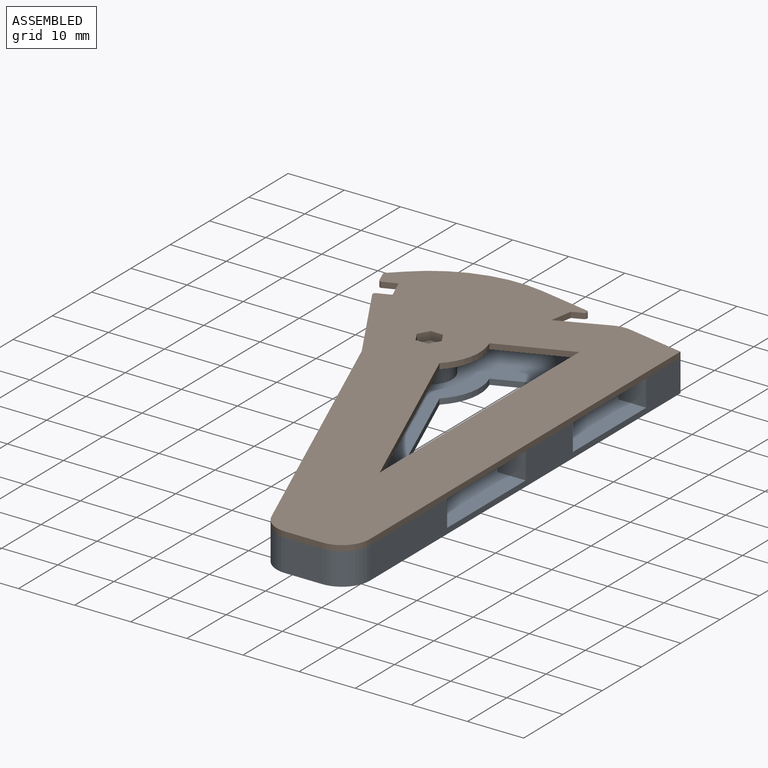
[diagram: assembled view]
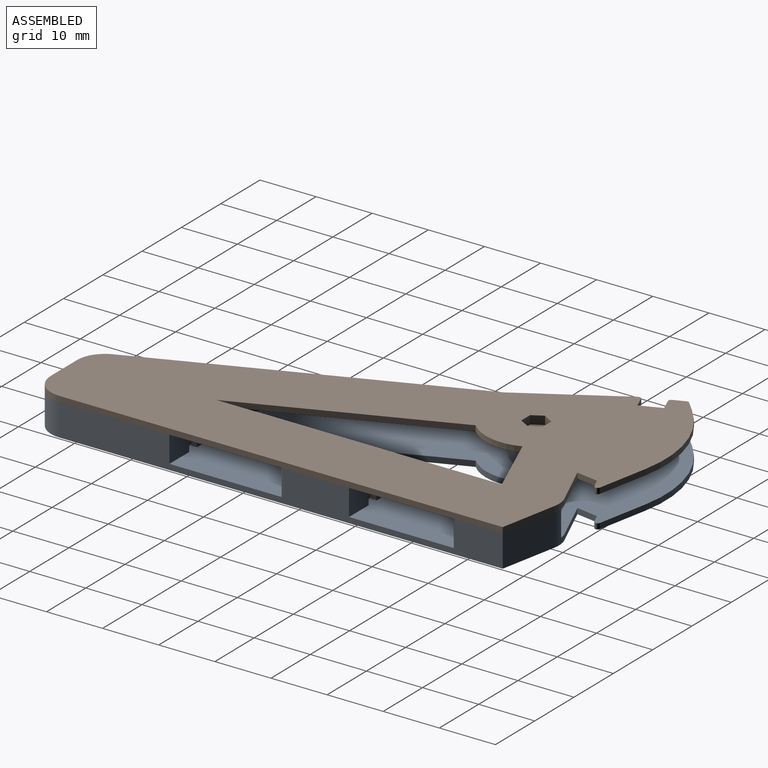
[diagram: assembled view, second angle]
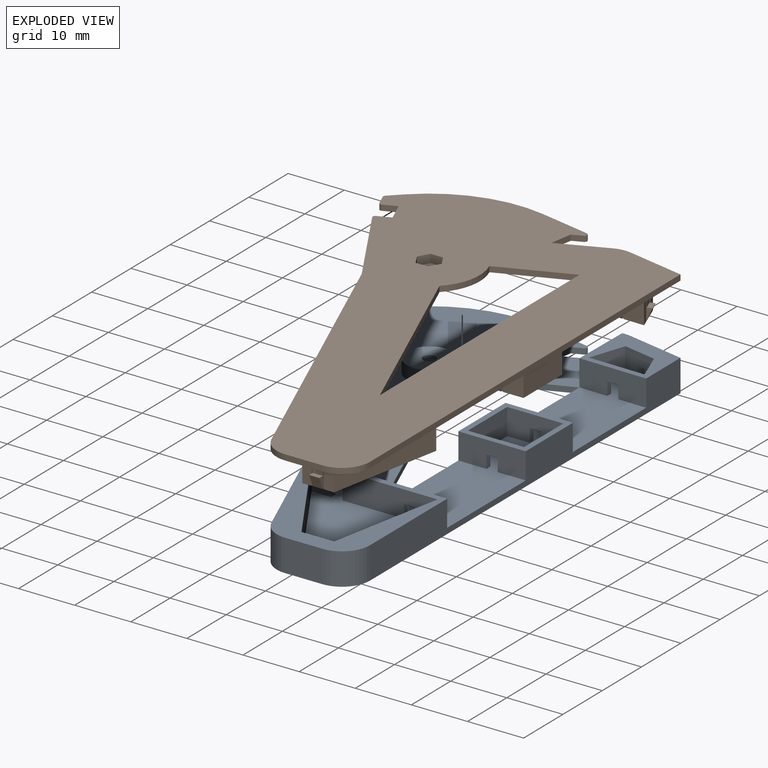
[diagram: exploded view]
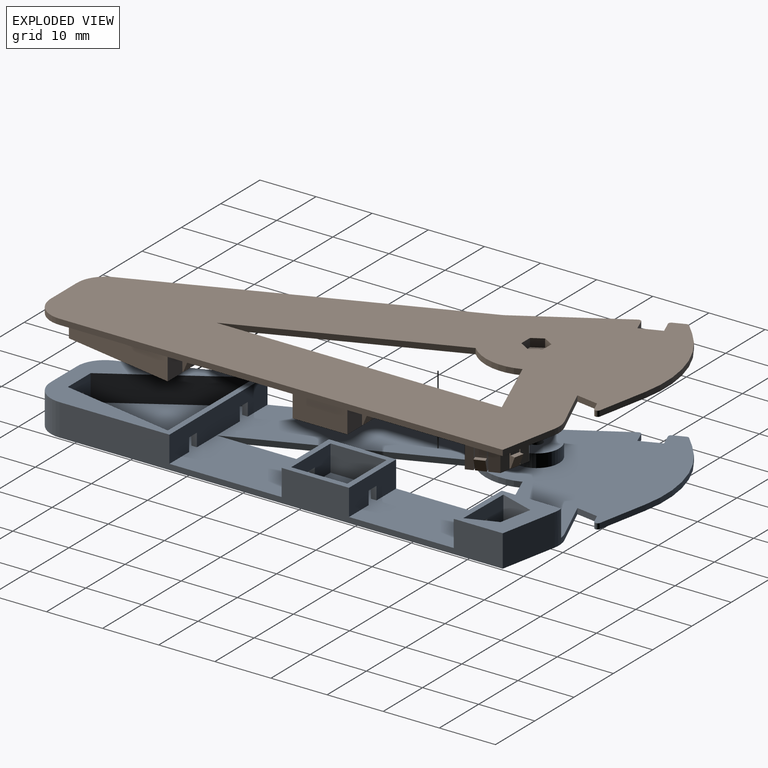
[diagram: exploded view, second angle]
ASSEMBLY  parts=2 mates=3
PART A: 78 faces, bbox 51x90x5.7 mm
  f0: plane 5.26x4.7mm, normal (-0.93,-0.36,0), area 21.7mm2, adj f1,f22,f43,f46,f70,f71,f72
  f1: plane 5.9x4.7mm, normal (-0.19,-0.98,0), area 23.6mm2, adj f0,f22,f44,f46,f66,f67,f68
  f2: plane 12x4.7mm, normal (-0.01,-1,0), area 51.7mm2, adj f8,f22,f45,f46,f63,f64,f65
  f3: plane 12x4.7mm, normal (0,1,0), area 51.7mm2, adj f8,f22,f29,f42,f60,f61,f62
  f4: plane 12x4.7mm, normal (0,-1,0), area 51.7mm2, adj f8,f22,f29,f42,f57,f58,f59
  f5: plane 22.46x4.7mm, normal (0,-1,0), area 96.2mm2, adj f22,f33,f36,f37,f51,f52,f53,f54
  f6: plane 54.32x21.95mm, normal (-0.93,-0.37,0), area 167.5mm2, adj f20,f21,f22,f35,f37,f75
  f7: plane 6.63x5.7mm, normal (0,-1,0), area 37.8mm2, adj f21,f37,f75,f76
  f8: plane 79x5.7mm, normal (1,0,0), area 268.6mm2, adj f2,f3,f4,f9,f21,f22,f35,f37
  f9: plane 10.34x5.7mm, normal (0.19,0.98,0), area 60.1mm2, adj f8,f21,f46,f77
  f10: plane 8.4x3.58mm, normal (-0.39,0.92,0), area 9.1mm2, adj f11,f21,f22,f77
  f11: plane 3.95x1mm, normal (0.99,-0.16,0), area 4mm2, adj f10,f12,f21,f22
  f12: plane 1.78x1mm, normal (0.39,-0.92,0), area 1.9mm2, adj f11,f21,f22,f25
  f13: plane 9.09x1.78mm, normal (0.19,0.98,0), area 9.3mm2, adj f14,f21,f22,f25
  f14: cylinder r=23mm len=20.35mm, axis (0,0,1), area 22mm2, adj f13,f15,f21,f22
  f15: plane 2.09x2mm, normal (-0.69,0.72,0), area 2.9mm2, adj f14,f21,f22,f26
  f16: plane 2x1mm, normal (-0.93,-0.37,0), area 2.2mm2, adj f21,f22,f26,f27
  f17: plane 2.32x1mm, normal (0.37,-0.93,0), area 2.5mm2, adj f18,f21,f22,f27
  f18: plane 3.71x1.5mm, normal (-0.93,-0.37,0), area 4mm2, adj f17,f19,f21,f22
  f19: plane 2.24x1mm, normal (-0.37,0.93,0), area 2.4mm2, adj f18,f21,f22,f28
  f20: plane 16.92x9.98mm, normal (-0.86,-0.51,0), area 19.6mm2, adj f6,f21,f22,f28
  f21: plane 90x51.02mm, normal (0,0,-1), area 2443.8mm2, adj f6,f7,f8,f9,f10,f11,f12,f13
  f22: plane 89x51.02mm, normal (0,0,1), area 2108.6mm2, adj f0,f1,f2,f3,f4,f5,f6,f8
  f23: cylinder r=4.05mm len=8.1mm, axis (0,0,-1), area 59.8mm2, adj f22,f24
  f24: plane 8.1x8.1mm, normal (0,0,1), area 47.7mm2, adj f23,f74
  f25: cylinder r=0.5mm len=1mm, axis (0,0,-1), area 1.3mm2, adj f12,f13,f21,f22
  f26: cylinder r=0.5mm len=1mm, axis (0,0,1), area 0.6mm2, adj f15,f16,f21,f22
  f27: cylinder r=0.5mm len=1mm, axis (0,0,1), area 0.8mm2, adj f16,f17,f21,f22
  f28: cylinder r=0.5mm len=1mm, axis (0,0,-1), area 0.9mm2, adj f19,f20,f21,f22
  f29: plane 50.82x5.7mm, normal (-1,0,0), area 107.2mm2, adj f3,f4,f21,f22,f30,f32,f42
  f30: plane 12.5x5.05mm, normal (0.37,-0.93,0), area 13.5mm2, adj f21,f22,f29,f31
  f31: cylinder r=9mm len=9.79mm, axis (0,0,1), area 10.6mm2, adj f21,f22,f30,f32
  f32: plane 35.98x14.54mm, normal (0.93,0.37,0), area 38.8mm2, adj f21,f22,f29,f31
  f33: plane 20.61x4.7mm, normal (-0.98,0.19,0), area 98.7mm2, adj f5,f22,f34,f37
  f34: plane 5.82x4.7mm, normal (0,1,0), area 22.7mm2, adj f22,f33,f36,f37,f47,f48,f49
  f35: plane 24.94x4.7mm, normal (0,1,0), area 107.8mm2, adj f6,f8,f22,f37,f51,f52,f53,f54
  f36: plane 20.61x12.64mm, normal (0.85,0.52,0), area 113.6mm2, adj f5,f22,f34,f37
  f37: plane 24.94x24.61mm, normal (0,0,1), area 192.7mm2, adj f5,f6,f7,f8,f33,f34,f35,f36
  f38: plane 10x4.7mm, normal (1,0,0), area 47mm2, adj f22,f39,f41,f42
  f39: plane 10x4.7mm, normal (0,-1,0), area 42.3mm2, adj f22,f38,f40,f42,f60,f61,f62
  f40: plane 10x4.7mm, normal (-1,0,0), area 47mm2, adj f22,f39,f41,f42
  f41: plane 10x4.7mm, normal (0,1,0), area 42.3mm2, adj f22,f38,f40,f42,f57,f58,f59
  f42: plane 12x12mm, normal (0,0,1), area 44mm2, adj f3,f4,f8,f29,f38,f39,f40,f41
  f43: plane 9.99x4.7mm, normal (0.01,1,0), area 42.2mm2, adj f0,f22,f44,f46,f63,f64,f65
  f44: plane 6.28x4.7mm, normal (0.95,-0.32,0), area 31.1mm2, adj f1,f22,f43,f46
  f45: plane 10.67x4.7mm, normal (-1,0.01,0), area 50.1mm2, adj f2,f22,f46,f77
  f46: plane 12x10.86mm, normal (0,0,1), area 71.2mm2, adj f0,f1,f2,f8,f9,f43,f44,f45
  f47: plane 2.35x2mm, normal (-1,0,0), area 4.7mm2, adj f22,f34,f49,f50
  f48: plane 2.35x2mm, normal (1,0,0), area 4.7mm2, adj f22,f34,f49,f50
  f49: plane 2x2mm, normal (0,0,-1), area 4mm2, adj f34,f47,f48,f50
  f50: plane 2.35x2mm, normal (0,1,0), area 4.7mm2, adj f22,f47,f48,f49
  f51: plane 2.35x1mm, normal (-1,0,0), area 2.4mm2, adj f5,f22,f35,f52
  f52: plane 2x1mm, normal (0,0,-1), area 2mm2, adj f5,f35,f51,f53
  f53: plane 2.35x1mm, normal (1,0,0), area 2.4mm2, adj f5,f22,f35,f52
  f54: plane 2.35x1mm, normal (-1,0,0), area 2.4mm2, adj f5,f22,f35,f55
  f55: plane 2x1mm, normal (0,0,-1), area 2mm2, adj f5,f35,f54,f56
  f56: plane 2.35x1mm, normal (1,0,0), area 2.4mm2, adj f5,f22,f35,f55
  f57: plane 2.35x1mm, normal (1,0,0), area 2.4mm2, adj f4,f22,f41,f58
  f58: plane 2x1mm, normal (0,0,-1), area 2mm2, adj f4,f41,f57,f59
  f59: plane 2.35x1mm, normal (-1,0,0), area 2.4mm2, adj f4,f22,f41,f58
  f60: plane 2.35x1mm, normal (-1,0,0), area 2.4mm2, adj f3,f22,f39,f61
  f61: plane 2x1mm, normal (0,0,-1), area 2mm2, adj f3,f39,f60,f62
  f62: plane 2.35x1mm, normal (1,0,0), area 2.4mm2, adj f3,f22,f39,f61
  f63: plane 2.35x1mm, normal (-1,0.01,0), area 2.4mm2, adj f2,f22,f43,f65
  f64: plane 2.35x1mm, normal (1,-0.01,0), area 2.4mm2, adj f2,f22,f43,f65
  f65: plane 2.01x1.03mm, normal (0,0,-1), area 2mm2, adj f2,f43,f63,f64
  f66: plane 2.35x1.96mm, normal (-0.98,0.19,0), area 4.7mm2, adj f1,f22,f67,f69
  f67: plane 2.35x2.35mm, normal (0,0,-1), area 4mm2, adj f1,f66,f68,f69
  f68: plane 2.35x1.96mm, normal (0.98,-0.19,0), area 4.7mm2, adj f1,f22,f67,f69
  f69: plane 2.35x1.96mm, normal (-0.19,-0.98,0), area 4.7mm2, adj f22,f66,f67,f68
  f70: plane 2.35x1.12mm, normal (-0.36,0.93,0), area 2.8mm2, adj f0,f22,f71,f73
  f71: plane 2.3x1.83mm, normal (0,0,-1), area 2.4mm2, adj f0,f70,f72,f73
  f72: plane 2.35x1.12mm, normal (0.36,-0.93,0), area 2.8mm2, adj f0,f22,f71,f73
  f73: plane 2.35x1.87mm, normal (-0.93,-0.36,0), area 4.7mm2, adj f22,f70,f71,f72
  f74: cylinder r=1.1mm len=3.35mm, axis (0,0,1), area 23.2mm2, adj f21,f24
  f75: cylinder r=5mm len=5.7mm, axis (0,0,1), area 33.8mm2, adj f6,f7,f21,f37
  f76: cylinder r=5mm len=5.7mm, axis (0,0,1), area 44.8mm2, adj f7,f8,f21,f37
  f77: cylinder r=5mm len=5.7mm, axis (0,0,1), area 10.1mm2, adj f9,f10,f21,f22,f45,f46
PART B: 158 faces, bbox 51x90x5.6 mm
  f0: cylinder r=1.1mm len=2.2mm, axis (0,0,1), area 12.8mm2, adj f63,f148
  f1: plane 2.45x1.8mm, normal (0,-1,0), area 4.4mm2, adj f89,f112,f113,f139
  f2: plane 2.45x1.8mm, normal (0,1,0), area 4.4mm2, adj f89,f104,f105,f136
  f3: plane 4.6x2.24mm, normal (-0.01,1,0), area 10.3mm2, adj f7,f89,f127,f131
  f4: plane 4.6x1.8mm, normal (-0.01,1,0), area 8.3mm2, adj f8,f89,f129,f130
  f5: plane 4.6x3.71mm, normal (0.01,-1,0), area 17.1mm2, adj f7,f77,f89,f131
  f6: plane 2.45x1.8mm, normal (0.01,-1,0), area 4.4mm2, adj f89,f129,f130,f143
  f7: plane 3.71x1.26mm, normal (0,0,1), area 3.6mm2, adj f3,f5,f77,f126,f127,f131
  f8: plane 1.81x1.02mm, normal (0,0,1), area 1.8mm2, adj f4,f129,f130,f142
  f9: plane 4.6x1.68mm, normal (0.93,-0.36,0), area 8.3mm2, adj f13,f89,f124,f125
  f10: plane 4.6x1.19mm, normal (0.93,-0.36,0), area 5.9mm2, adj f14,f78,f89,f123
  f11: plane 2.45x1.68mm, normal (-0.93,0.36,0), area 4.4mm2, adj f89,f124,f125,f147
  f12: plane 4.6x1.71mm, normal (-0.93,0.36,0), area 8.4mm2, adj f14,f76,f89,f123
  f13: plane 2.04x1.58mm, normal (0,0,1), area 1.8mm2, adj f9,f124,f125,f146
  f14: plane 2.64x2.42mm, normal (0,0,1), area 3.1mm2, adj f10,f12,f76,f78,f122,f123
  f15: plane 2.45x1.77mm, normal (-0.19,0.98,0), area 4.4mm2, adj f89,f120,f121,f145
  f16: plane 4.6x1.78mm, normal (-0.19,0.98,0), area 8.3mm2, adj f75,f79,f89,f119
  f17: plane 4.6x1.77mm, normal (0.19,-0.98,0), area 8.3mm2, adj f19,f89,f120,f121
  f18: plane 4.6x0.91mm, normal (0.19,-0.98,0), area 4.3mm2, adj f72,f79,f89,f119
  f19: plane 1.96x1.33mm, normal (0,0,1), area 1.8mm2, adj f17,f120,f121,f144
  f20: plane 2.45x1.8mm, normal (0,1,0), area 4.4mm2, adj f89,f116,f117,f140
  f21: plane 4.6x3.78mm, normal (0,1,0), area 17.4mm2, adj f29,f80,f89,f115
  f22: plane 4.6x3.78mm, normal (0,-1,0), area 17.4mm2, adj f29,f80,f89,f111
  f23: plane 4.6x2.73mm, normal (0,-1,0), area 12.5mm2, adj f86,f88,f89,f118
  f24: plane 4.6x1.8mm, normal (0,-1,0), area 8.3mm2, adj f27,f89,f116,f117
  f25: plane 4.6x2.73mm, normal (0,1,0), area 12.5mm2, adj f86,f88,f89,f114
  f26: plane 4.6x1.8mm, normal (0,1,0), area 8.3mm2, adj f28,f89,f112,f113
  f27: plane 1.8x1mm, normal (0,0,1), area 1.8mm2, adj f24,f116,f117,f141
  f28: plane 1.8x1mm, normal (0,0,1), area 1.8mm2, adj f26,f112,f113,f138
  f29: plane 9.76x3.78mm, normal (0,0,1), area 15.3mm2, adj f21,f22,f80,f83,f84,f85,f111,f115
  f30: plane 1.8x1mm, normal (0,0,1), area 1.8mm2, adj f38,f108,f109,f134
  f31: plane 10.74x1mm, normal (0,0,1), area 10.7mm2, adj f35,f39,f106,f107
  f32: plane 1.8x1mm, normal (0,0,1), area 1.8mm2, adj f40,f104,f105,f137
  f33: plane 20.37x14.15mm, normal (0,0,1), area 26.4mm2, adj f36,f42,f93,f94,f95,f97,f100,f103
  f34: plane 2.45x1.8mm, normal (0,1,0), area 4.4mm2, adj f89,f108,f109,f135
  f35: plane 10.74x4.6mm, normal (0,1,0), area 49.4mm2, adj f31,f89,f106,f107
  f36: plane 4.6x3.2mm, normal (0,1,0), area 14.7mm2, adj f33,f89,f97,f103
  f37: plane 4.6x2.54mm, normal (0,-1,0), area 11.7mm2, adj f45,f89,f96,f110
  f38: plane 4.6x1.8mm, normal (0,-1,0), area 8.3mm2, adj f30,f89,f108,f109
  f39: plane 10.74x4.6mm, normal (0,-1,0), area 49.4mm2, adj f31,f89,f106,f107
  f40: plane 4.6x1.8mm, normal (0,-1,0), area 8.3mm2, adj f32,f89,f104,f105
  f41: plane 2.45x1.8mm, normal (0,-1,0), area 4.4mm2, adj f89,f99,f102,f132
  f42: plane 4.6x1.65mm, normal (0,-1,0), area 7.6mm2, adj f33,f89,f97,f100
  f43: plane 4.6x0.98mm, normal (0,1,0), area 4.5mm2, adj f45,f89,f96,f101
  f44: plane 4.6x1.8mm, normal (0,1,0), area 8.3mm2, adj f89,f98,f99,f102
  f45: plane 20.37x5.75mm, normal (0,0,1), area 24.3mm2, adj f37,f43,f90,f91,f92,f96,f101,f110
  f46: plane 54.32x21.95mm, normal (0.93,-0.37,0), area 58.6mm2, adj f47,f61,f89,f157
  f47: plane 16.92x9.98mm, normal (0.86,-0.51,0), area 19.6mm2, adj f46,f61,f65,f89
  f48: plane 2.24x1mm, normal (0.37,0.93,0), area 2.4mm2, adj f49,f61,f65,f89
  f49: plane 3.71x1.5mm, normal (0.93,-0.37,0), area 4mm2, adj f48,f50,f61,f89
  f50: plane 2.32x1mm, normal (-0.37,-0.93,0), area 2.5mm2, adj f49,f61,f66,f89
  f51: plane 2x1mm, normal (0.93,-0.37,0), area 2.2mm2, adj f61,f66,f67,f89
  f52: plane 2.09x2mm, normal (0.69,0.72,0), area 2.9mm2, adj f53,f61,f67,f89
  f53: cylinder r=23mm len=20.35mm, axis (0,0,1), area 22mm2, adj f52,f54,f61,f89
  f54: plane 9.09x1.78mm, normal (-0.19,0.98,0), area 9.3mm2, adj f53,f61,f64,f89
  f55: plane 1.78x1mm, normal (-0.39,-0.92,0), area 1.9mm2, adj f56,f61,f64,f89
  f56: plane 3.95x1mm, normal (-0.99,-0.16,0), area 4mm2, adj f55,f57,f61,f89
  f57: plane 8.4x3.58mm, normal (0.39,0.92,0), area 9.1mm2, adj f56,f61,f89,f155
  f58: plane 10.34x2.03mm, normal (-0.19,0.98,0), area 10.5mm2, adj f59,f61,f89,f155
  f59: plane 79x1mm, normal (-1,0,0), area 79mm2, adj f58,f61,f89,f156
  f60: plane 6.63x1mm, normal (0,-1,0), area 6.6mm2, adj f61,f89,f156,f157
  f61: plane 90x51.02mm, normal (0,0,-1), area 2434.9mm2, adj f46,f47,f48,f49,f50,f51,f52,f53
  f62: cylinder r=4.05mm len=8.1mm, axis (0,0,-1), area 59.8mm2, adj f63,f89
  f63: plane 8.1x8.1mm, normal (0,0,1), area 47.7mm2, adj f0,f62
  f64: cylinder r=0.5mm len=1mm, axis (0,0,-1), area 1.3mm2, adj f54,f55,f61,f89
  f65: cylinder r=0.5mm len=1mm, axis (0,0,-1), area 0.9mm2, adj f47,f48,f61,f89
  f66: cylinder r=0.5mm len=1mm, axis (0,0,1), area 0.8mm2, adj f50,f51,f61,f89
  f67: cylinder r=0.5mm len=1mm, axis (0,0,1), area 0.6mm2, adj f51,f52,f61,f89
  f68: plane 50.82x1mm, normal (1,0,0), area 50.8mm2, adj f61,f69,f71,f89
  f69: plane 35.98x14.54mm, normal (-0.93,0.37,0), area 38.8mm2, adj f61,f68,f70,f89
  f70: cylinder r=9mm len=9.79mm, axis (0,0,1), area 10.6mm2, adj f61,f69,f71,f89
  f71: plane 12.5x5.05mm, normal (-0.37,-0.93,0), area 13.5mm2, adj f61,f68,f70,f89
  f72: plane 4.6x3.89mm, normal (-0.95,-0.32,0), area 18.9mm2, adj f18,f73,f79,f89
  f73: plane 4.6x2.37mm, normal (-0.01,1,0), area 10.9mm2, adj f72,f79,f89,f128
  f74: plane 4.6x3.74mm, normal (0.01,-1,0), area 17.2mm2, adj f75,f79,f89,f128
  f75: plane 6.02x4.6mm, normal (0.95,0.32,0), area 29.2mm2, adj f16,f74,f79,f89
  f76: plane 4.6x1.8mm, normal (-0.19,0.98,0), area 8.4mm2, adj f12,f14,f89,f122
  f77: plane 4.6x1.26mm, normal (-0.93,0.36,0), area 6.2mm2, adj f5,f7,f89,f126
  f78: plane 4.6x1.25mm, normal (0.19,-0.98,0), area 5.9mm2, adj f10,f14,f89,f122
  f79: plane 6.07x3.77mm, normal (0,0,1), area 9.6mm2, adj f16,f18,f72,f73,f74,f75,f119,f128
  f80: plane 9.76x4.6mm, normal (1,0,0), area 44.9mm2, adj f21,f22,f29,f89
  f81: plane 4.6x3.73mm, normal (0,1,0), area 17.1mm2, adj f82,f88,f89,f118
  f82: plane 9.76x4.6mm, normal (-1,0,0), area 44.9mm2, adj f81,f87,f88,f89
  f83: plane 4.6x2.78mm, normal (0,-1,0), area 12.8mm2, adj f29,f84,f89,f115
  f84: plane 7.76x4.6mm, normal (-1,0,0), area 35.7mm2, adj f29,f83,f85,f89
  f85: plane 4.6x2.78mm, normal (0,1,0), area 12.8mm2, adj f29,f84,f89,f111
  f86: plane 7.76x4.6mm, normal (1,0,0), area 35.7mm2, adj f23,f25,f88,f89
  f87: plane 4.6x3.73mm, normal (0,-1,0), area 17.1mm2, adj f82,f88,f89,f114
  f88: plane 9.76x3.73mm, normal (0,0,1), area 15.2mm2, adj f23,f25,f81,f82,f86,f87,f114,f118
  f89: plane 90x51.02mm, normal (0,0,1), area 2273.4mm2, adj f1,f2,f3,f4,f5,f6,f9,f10
  f90: plane 4.6x3.75mm, normal (0,1,0), area 17.3mm2, adj f45,f89,f91,f110
  f91: plane 20.37x4.6mm, normal (-0.98,-0.19,0), area 95.4mm2, adj f45,f89,f90,f92
  f92: plane 4.6x1.8mm, normal (0,-1,0), area 8.3mm2, adj f45,f89,f91,f101
  f93: plane 4.6x1.42mm, normal (0,-1,0), area 6.5mm2, adj f33,f89,f94,f103
  f94: plane 18.37x11.27mm, normal (-0.85,0.52,0), area 99.1mm2, adj f33,f89,f93,f95
  f95: plane 4.6x1.09mm, normal (0,1,0), area 5mm2, adj f33,f89,f94,f100
  f96: plane 18.37x4.6mm, normal (0.98,0.19,0), area 86.1mm2, adj f37,f43,f45,f89
  f97: plane 20.37x12.49mm, normal (0.85,-0.52,0), area 109.9mm2, adj f33,f36,f42,f89
  f98: plane 1.8x1mm, normal (0,0,1), area 1.8mm2, adj f44,f99,f102,f133
  f99: plane 4.6x1.9mm, normal (1,0,0), area 5.6mm2, adj f41,f44,f89,f98,f132,f133
  f100: plane 4.6x1mm, normal (-1,0,0), area 4.6mm2, adj f33,f42,f89,f95
  f101: plane 4.6x1mm, normal (1,0,0), area 4.6mm2, adj f43,f45,f89,f92
  f102: plane 4.6x1.9mm, normal (-1,0,0), area 5.6mm2, adj f41,f44,f89,f98,f132,f133
  f103: plane 4.6x1mm, normal (-1,0,0), area 4.6mm2, adj f33,f36,f89,f93
  f104: plane 4.6x1.9mm, normal (1,0,0), area 5.6mm2, adj f2,f32,f40,f89,f136,f137
  f105: plane 4.6x1.9mm, normal (-1,0,0), area 5.6mm2, adj f2,f32,f40,f89,f136,f137
  f106: plane 4.6x1mm, normal (1,0,0), area 4.6mm2, adj f31,f35,f39,f89
  f107: plane 4.6x1mm, normal (-1,0,0), area 4.6mm2, adj f31,f35,f39,f89
  f108: plane 4.6x1.9mm, normal (1,0,0), area 5.6mm2, adj f30,f34,f38,f89,f134,f135
  f109: plane 4.6x1.9mm, normal (-1,0,0), area 5.6mm2, adj f30,f34,f38,f89,f134,f135
  f110: plane 4.6x1mm, normal (1,0,0), area 4.6mm2, adj f37,f45,f89,f90
  f111: plane 4.6x1mm, normal (-1,0,0), area 4.6mm2, adj f22,f29,f85,f89
  f112: plane 4.6x1.9mm, normal (1,0,0), area 5.6mm2, adj f1,f26,f28,f89,f138,f139
  f113: plane 4.6x1.9mm, normal (-1,0,0), area 5.6mm2, adj f1,f26,f28,f89,f138,f139
  f114: plane 4.6x1mm, normal (1,0,0), area 4.6mm2, adj f25,f87,f88,f89
  f115: plane 4.6x1mm, normal (-1,0,0), area 4.6mm2, adj f21,f29,f83,f89
  f116: plane 4.6x1.9mm, normal (1,0,0), area 5.6mm2, adj f20,f24,f27,f89,f140,f141
  f117: plane 4.6x1.9mm, normal (-1,0,0), area 5.6mm2, adj f20,f24,f27,f89,f140,f141
  f118: plane 4.6x1mm, normal (1,0,0), area 4.6mm2, adj f23,f81,f88,f89
  f119: plane 4.6x0.98mm, normal (-0.98,-0.19,0), area 4.6mm2, adj f16,f18,f79,f89
  f120: plane 4.6x1.86mm, normal (0.98,0.19,0), area 5.6mm2, adj f15,f17,f19,f89,f144,f145
  f121: plane 4.6x1.86mm, normal (-0.98,-0.19,0), area 5.6mm2, adj f15,f17,f19,f89,f144,f145
  f122: plane 4.6x0.98mm, normal (0.98,0.19,0), area 4.6mm2, adj f14,f76,f78,f89
  f123: plane 4.6x0.93mm, normal (-0.36,-0.93,0), area 4.6mm2, adj f10,f12,f14,f89
  f124: plane 4.6x1.78mm, normal (0.36,0.93,0), area 5.6mm2, adj f9,f11,f13,f89,f146,f147
  f125: plane 4.6x1.78mm, normal (-0.36,-0.93,0), area 5.6mm2, adj f9,f11,f13,f89,f146,f147
  f126: plane 4.6x0.93mm, normal (0.36,0.93,0), area 4.6mm2, adj f7,f77,f89,f127
  f127: plane 4.6x0.12mm, normal (-0.93,0.36,0), area 0.6mm2, adj f3,f7,f89,f126
  f128: plane 4.6x1mm, normal (-1,-0.01,0), area 4.6mm2, adj f73,f74,f79,f89
  f129: plane 4.6x1.9mm, normal (1,0.01,0), area 5.6mm2, adj f4,f6,f8,f89,f142,f143
  f130: plane 4.6x1.9mm, normal (-1,-0.01,0), area 5.6mm2, adj f4,f6,f8,f89,f142,f143
  f131: plane 4.6x1mm, normal (1,0.01,0), area 4.6mm2, adj f3,f5,f7,f89
  f132: plane 1.8x0.9mm, normal (0,0,-1), area 1.6mm2, adj f41,f99,f102,f133
  f133: plane 2.15x1.8mm, normal (0,-0.92,0.39), area 4.2mm2, adj f98,f99,f102,f132
  f134: plane 2.15x1.8mm, normal (0,0.92,0.39), area 4.2mm2, adj f30,f108,f109,f135
  f135: plane 1.8x0.9mm, normal (0,0,-1), area 1.6mm2, adj f34,f108,f109,f134
  f136: plane 1.8x0.9mm, normal (0,0,-1), area 1.6mm2, adj f2,f104,f105,f137
  f137: plane 2.15x1.8mm, normal (0,0.92,0.39), area 4.2mm2, adj f32,f104,f105,f136
  f138: plane 2.15x1.8mm, normal (0,-0.92,0.39), area 4.2mm2, adj f28,f112,f113,f139
  f139: plane 1.8x0.9mm, normal (0,0,-1), area 1.6mm2, adj f1,f112,f113,f138
  f140: plane 1.8x0.9mm, normal (0,0,-1), area 1.6mm2, adj f20,f116,f117,f141
  f141: plane 2.15x1.8mm, normal (0,0.92,0.39), area 4.2mm2, adj f27,f116,f117,f140
  f142: plane 2.15x1.81mm, normal (0.01,-0.92,0.39), area 4.2mm2, adj f8,f129,f130,f143
  f143: plane 1.81x0.92mm, normal (0,0,-1), area 1.6mm2, adj f6,f129,f130,f142
  f144: plane 2.15x1.94mm, normal (-0.18,0.91,0.39), area 4.2mm2, adj f19,f120,f121,f145
  f145: plane 1.94x1.23mm, normal (0,0,-1), area 1.6mm2, adj f15,f120,f121,f144
  f146: plane 2.15x2mm, normal (-0.86,0.33,0.39), area 4.2mm2, adj f13,f124,f125,f147
  f147: plane 2x1.48mm, normal (0,0,-1), area 1.6mm2, adj f11,f124,f125,f146
  f148: plane 4.42x3.83mm, normal (0,0,-1), area 8.9mm2, adj f0,f149,f150,f151,f152,f153,f154
  f149: plane 1.92x1.5mm, normal (-0.87,0.5,0), area 3.3mm2, adj f61,f148,f150,f154
  f150: plane 2.21x1.5mm, normal (0,1,0), area 3.3mm2, adj f61,f148,f149,f151
  f151: plane 1.92x1.5mm, normal (0.87,0.5,0), area 3.3mm2, adj f61,f148,f150,f152
  f152: plane 1.92x1.5mm, normal (0.87,-0.5,0), area 3.3mm2, adj f61,f148,f151,f153
  f153: plane 2.21x1.5mm, normal (0,-1,0), area 3.3mm2, adj f61,f148,f152,f154
  f154: plane 1.92x1.5mm, normal (-0.87,-0.5,0), area 3.3mm2, adj f61,f148,f149,f153
  f155: cylinder r=5mm len=2.92mm, axis (0,0,1), area 3mm2, adj f57,f58,f61,f89
  f156: cylinder r=5mm len=5mm, axis (0,0,1), area 7.9mm2, adj f59,f60,f61,f89
  f157: cylinder r=5mm len=4.64mm, axis (0,0,1), area 5.9mm2, adj f46,f60,f61,f89
PLACE A t=(9.52,-9.05,7.5)mm fixed
PLACE B rot(axis=(0,1,0),180deg) t=(89.52,-9.05,12.2)mm
MATE cylindrical B.f62 <-> A.f23  axis (0,0,1) through (9.52,-9.05,11.02)mm
MATE planar B.f89 <-> A.f42  axis (0,0,-1) through (42.37,-31.55,12.2)mm
MATE parallel B.f59 <-> A.f8  axis (1,0,0) through (42.37,-31.55,12.7)mm
